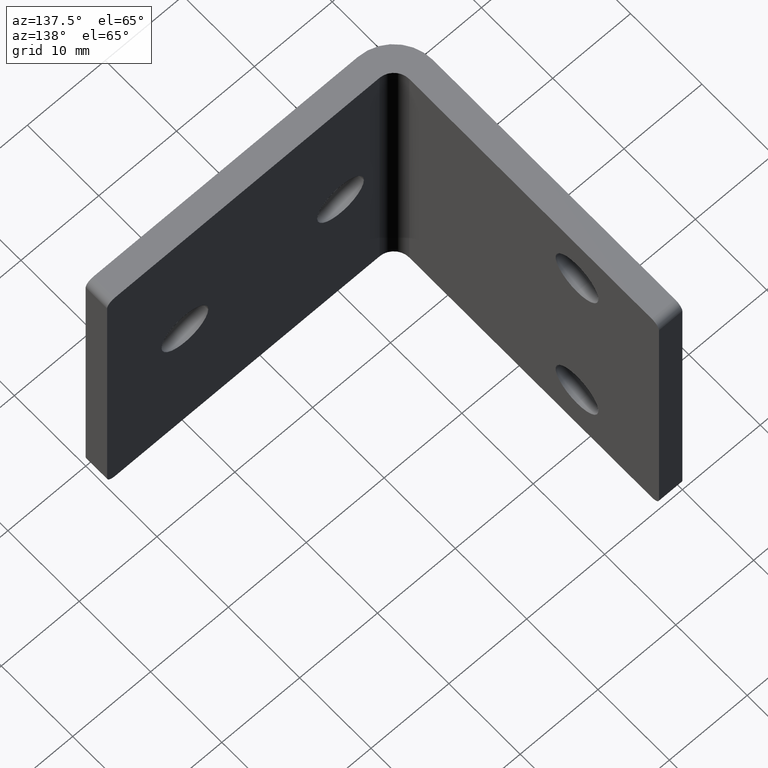
[diagram: clean part render]
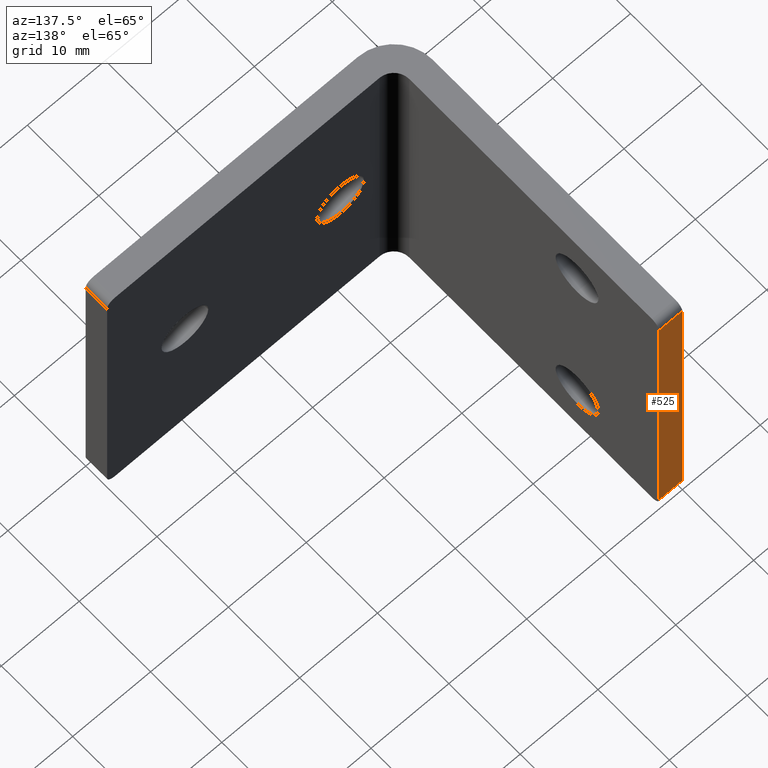
[diagram: same view with one face highlighted and labeled with its STEP entity id]
A machine part, auxiliary view. The second image highlights one B-rep face of the part: STEP entity #525.
In plain terms, the highlighted planar face has unit normal (0, -1, 0).
Its self-contained STEP definition (entity closure, byte-faithful):
#201=CARTESIAN_POINT('',(-36.999999999999986,40.0,-19.0));
#202=VERTEX_POINT('',#201);
#210=CARTESIAN_POINT('',(-36.999999999999986,40.0,19.0));
#211=VERTEX_POINT('',#210);
#212=CARTESIAN_POINT('',(-36.999999999999986,40.0,-19.0));
#213=DIRECTION('',(0.0,0.0,1.0));
#214=VECTOR('',#213,38.0);
#215=LINE('',#212,#214);
#216=EDGE_CURVE('',#202,#211,#215,.T.);
#457=CARTESIAN_POINT('',(-39.999999999999986,40.0,19.0));
#458=VERTEX_POINT('',#457);
#466=CARTESIAN_POINT('',(-39.999999999999986,40.0,-19.0));
#467=VERTEX_POINT('',#466);
#468=CARTESIAN_POINT('',(-39.999999999999986,40.0,-19.0));
#469=DIRECTION('',(0.0,0.0,1.0));
#470=VECTOR('',#469,38.0);
#471=LINE('',#468,#470);
#472=EDGE_CURVE('',#467,#458,#471,.T.);
#504=CARTESIAN_POINT('',(-40.149999999999984,40.0,20.899999999999999));
#505=DIRECTION('',(0.0,-1.0,0.0));
#506=DIRECTION('',(0.0,0.0,-1.0));
#507=AXIS2_PLACEMENT_3D('',#504,#505,#506);
#508=PLANE('',#507);
#509=ORIENTED_EDGE('',*,*,#472,.T.);
#510=CARTESIAN_POINT('',(-39.999999999999986,40.0,19.0));
#511=DIRECTION('',(1.0,0.0,0.0));
#512=VECTOR('',#511,3.0);
#513=LINE('',#510,#512);
#514=EDGE_CURVE('',#458,#211,#513,.T.);
#515=ORIENTED_EDGE('',*,*,#514,.T.);
#516=ORIENTED_EDGE('',*,*,#216,.F.);
#517=CARTESIAN_POINT('',(-36.999999999999986,40.0,-19.0));
#518=DIRECTION('',(-1.0,0.0,0.0));
#519=VECTOR('',#518,3.0);
#520=LINE('',#517,#519);
#521=EDGE_CURVE('',#202,#467,#520,.T.);
#522=ORIENTED_EDGE('',*,*,#521,.T.);
#523=EDGE_LOOP('',(#509,#515,#516,#522));
#524=FACE_OUTER_BOUND('',#523,.T.);
#525=ADVANCED_FACE('',(#524),#508,.F.);